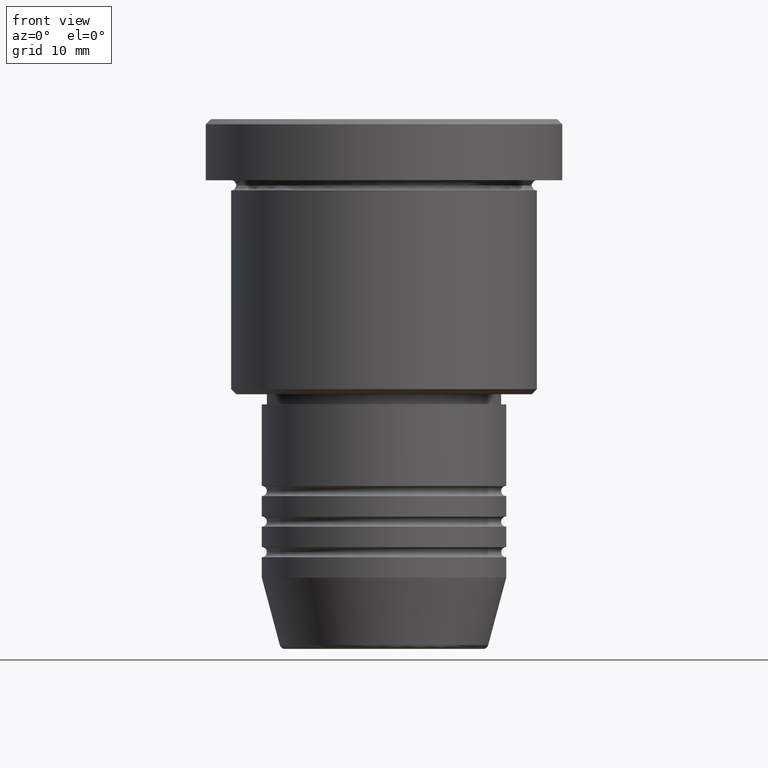
[diagram: clean part render]
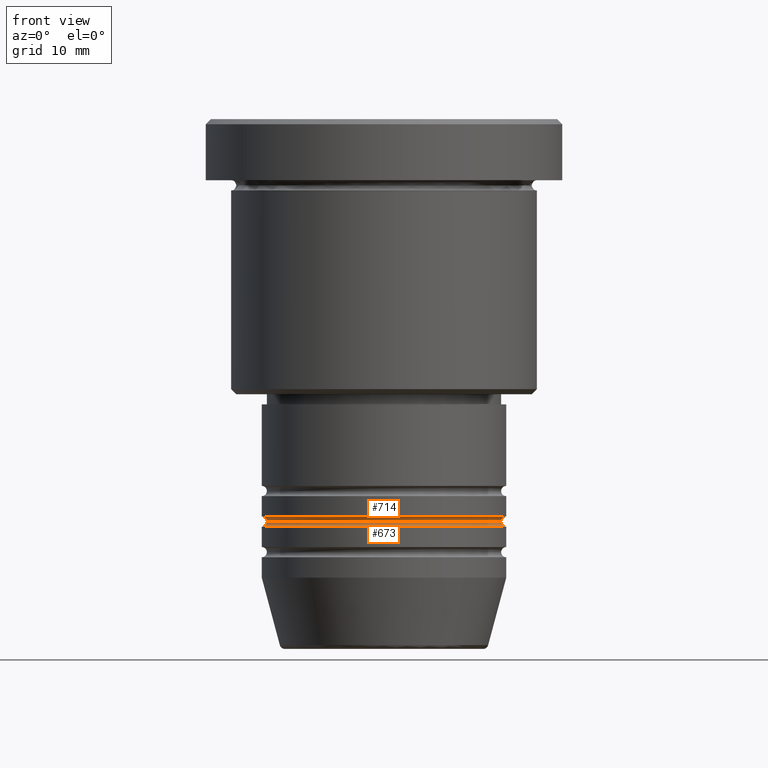
[diagram: same view with one multi-face feature highlighted, each face labeled with its STEP entity id]
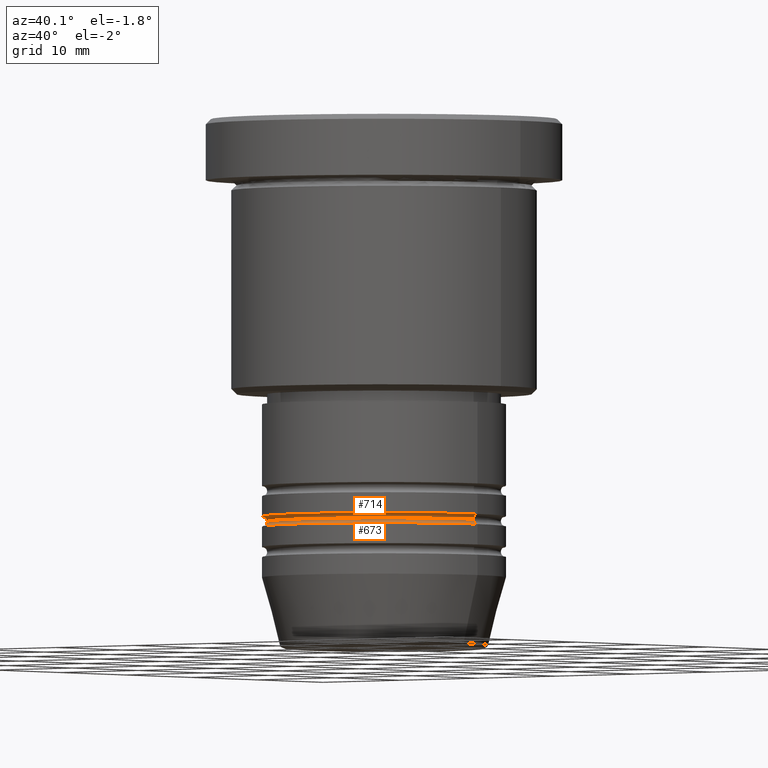
[diagram: same view with one multi-face feature highlighted, each face labeled with its STEP entity id]
A machine part, front view. The highlighted faces form ONE feature: a constant-radius fillet chain: 2 tangent blend faces with common blend radius 0.5 mm. The faces share edges in the B-rep.
A second angle (auxiliary view) of the same feature is appended — it is thin or edge-on in the first view.
Their STEP definitions:
[1] entity #673 (Torus):
#1 = DIRECTION ( 'NONE',  ( 1.000000000000000000, 0.000000000000000000, 0.000000000000000000 ) ) ;
#51 = DIRECTION ( 'NONE',  ( -0.000000000000000000, -0.000000000000000000, 1.000000000000000000 ) ) ;
#59 = DIRECTION ( 'NONE',  ( 1.000000000000000000, 0.000000000000000000, 0.000000000000000000 ) ) ;
#64 = CARTESIAN_POINT ( 'NONE',  ( 0.000000000000000000, 0.000000000000000000, -39.49999999999997868 ) ) ;
#76 = CARTESIAN_POINT ( 'NONE',  ( 11.50000000000000000, 0.000000000000000000, -39.49999999999997868 ) ) ;
#93 = AXIS2_PLACEMENT_3D ( 'NONE', #553, #103, #831 ) ;
#100 = DIRECTION ( 'NONE',  ( 0.000000000000000000, -1.000000000000000000, 0.000000000000000000 ) ) ;
#103 = DIRECTION ( 'NONE',  ( -0.000000000000000000, -0.000000000000000000, 1.000000000000000000 ) ) ;
#121 = EDGE_CURVE ( 'NONE', #1034, #641, #871, .T. ) ;
#129 = CIRCLE ( 'NONE', #699, 0.5000000000000004441 ) ;
#144 = ORIENTED_EDGE ( 'NONE', *, *, #509, .F. ) ;
#160 = VERTEX_POINT ( 'NONE', #592 ) ;
#186 = DIRECTION ( 'NONE',  ( -0.000000000000000000, -0.000000000000000000, 1.000000000000000000 ) ) ;
#278 = VERTEX_POINT ( 'NONE', #463 ) ;
#304 = CIRCLE ( 'NONE', #93, 12.00000000000000000 ) ;
#341 = DIRECTION ( 'NONE',  ( 1.224646799147353207E-16, 1.000000000000000000, 0.000000000000000000 ) ) ;
#350 = ORIENTED_EDGE ( 'NONE', *, *, #121, .F. ) ;
#359 = AXIS2_PLACEMENT_3D ( 'NONE', #64, #51, #59 ) ;
#463 = CARTESIAN_POINT ( 'NONE',  ( -12.00000000000000000, 1.469576158976823947E-15, -39.99999999999997868 ) ) ;
#468 = DIRECTION ( 'NONE',  ( 0.000000000000000000, 0.000000000000000000, -1.000000000000000000 ) ) ;
#478 = CARTESIAN_POINT ( 'NONE',  ( 0.000000000000000000, 0.000000000000000000, -39.49999999999997868 ) ) ;
#491 = ORIENTED_EDGE ( 'NONE', *, *, #598, .T. ) ;
#509 = EDGE_CURVE ( 'NONE', #641, #160, #129, .T. ) ;
#523 = CARTESIAN_POINT ( 'NONE',  ( -12.00000000000000000, 1.469576158976823947E-15, -39.49999999999997868 ) ) ;
#532 = AXIS2_PLACEMENT_3D ( 'NONE', #478, #186, #1 ) ;
#553 = CARTESIAN_POINT ( 'NONE',  ( 0.000000000000000000, 0.000000000000000000, -39.99999999999997868 ) ) ;
#592 = CARTESIAN_POINT ( 'NONE',  ( 12.00000000000000000, 0.000000000000000000, -39.99999999999997868 ) ) ;
#598 = EDGE_CURVE ( 'NONE', #1034, #278, #1160, .T. ) ;
#614 = DIRECTION ( 'NONE',  ( -1.000000000000000000, 1.224646799147353454E-16, 0.000000000000000000 ) ) ;
#641 = VERTEX_POINT ( 'NONE', #76 ) ;
#673 = ADVANCED_FACE ( 'NONE', ( #915 ), #1042, .F. ) ;
#699 = AXIS2_PLACEMENT_3D ( 'NONE', #864, #100, #468 ) ;
#737 = EDGE_CURVE ( 'NONE', #278, #160, #304, .T. ) ;
#775 = AXIS2_PLACEMENT_3D ( 'NONE', #523, #341, #614 ) ;
#831 = DIRECTION ( 'NONE',  ( 1.000000000000000000, 0.000000000000000000, 0.000000000000000000 ) ) ;
#864 = CARTESIAN_POINT ( 'NONE',  ( 12.00000000000000000, 0.000000000000000000, -39.49999999999997868 ) ) ;
#871 = CIRCLE ( 'NONE', #359, 11.50000000000000000 ) ;
#891 = CARTESIAN_POINT ( 'NONE',  ( -11.50000000000000000, 1.438959988998139963E-15, -39.49999999999997868 ) ) ;
#905 = EDGE_LOOP ( 'NONE', ( #350, #491, #1132, #144 ) ) ;
#915 = FACE_OUTER_BOUND ( 'NONE', #905, .T. ) ;
#1034 = VERTEX_POINT ( 'NONE', #891 ) ;
#1042 = TOROIDAL_SURFACE ( 'NONE', #532, 12.00000000000000000, 0.5000000000000000000 ) ;
#1132 = ORIENTED_EDGE ( 'NONE', *, *, #737, .T. ) ;
#1160 = CIRCLE ( 'NONE', #775, 0.5000000000000004441 ) ;
[2] entity #714 (Torus):
#45 = DIRECTION ( 'NONE',  ( 1.000000000000000000, 0.000000000000000000, 0.000000000000000000 ) ) ;
#47 = ORIENTED_EDGE ( 'NONE', *, *, #810, .T. ) ;
#51 = DIRECTION ( 'NONE',  ( -0.000000000000000000, -0.000000000000000000, 1.000000000000000000 ) ) ;
#52 = AXIS2_PLACEMENT_3D ( 'NONE', #280, #371, #376 ) ;
#59 = DIRECTION ( 'NONE',  ( 1.000000000000000000, 0.000000000000000000, 0.000000000000000000 ) ) ;
#64 = CARTESIAN_POINT ( 'NONE',  ( 0.000000000000000000, 0.000000000000000000, -39.49999999999997868 ) ) ;
#76 = CARTESIAN_POINT ( 'NONE',  ( 11.50000000000000000, 0.000000000000000000, -39.49999999999997868 ) ) ;
#121 = EDGE_CURVE ( 'NONE', #1034, #641, #871, .T. ) ;
#137 = EDGE_CURVE ( 'NONE', #1139, #484, #244, .T. ) ;
#138 = DIRECTION ( 'NONE',  ( -0.000000000000000000, -0.000000000000000000, 1.000000000000000000 ) ) ;
#145 = DIRECTION ( 'NONE',  ( 0.000000000000000000, 0.000000000000000000, -1.000000000000000000 ) ) ;
#189 = AXIS2_PLACEMENT_3D ( 'NONE', #1068, #1141, #145 ) ;
#217 = CARTESIAN_POINT ( 'NONE',  ( 12.00000000000000000, 0.000000000000000000, -38.99999999999997868 ) ) ;
#244 = CIRCLE ( 'NONE', #494, 12.00000000000000000 ) ;
#279 = CARTESIAN_POINT ( 'NONE',  ( -12.00000000000000000, 1.469576158976823947E-15, -38.99999999999997868 ) ) ;
#280 = CARTESIAN_POINT ( 'NONE',  ( 0.000000000000000000, 0.000000000000000000, -39.49999999999997868 ) ) ;
#359 = AXIS2_PLACEMENT_3D ( 'NONE', #64, #51, #59 ) ;
#371 = DIRECTION ( 'NONE',  ( 0.000000000000000000, 0.000000000000000000, -1.000000000000000000 ) ) ;
#376 = DIRECTION ( 'NONE',  ( -1.000000000000000000, 0.000000000000000000, 0.000000000000000000 ) ) ;
#484 = VERTEX_POINT ( 'NONE', #217 ) ;
#492 = ORIENTED_EDGE ( 'NONE', *, *, #137, .F. ) ;
#494 = AXIS2_PLACEMENT_3D ( 'NONE', #1137, #138, #45 ) ;
#502 = DIRECTION ( 'NONE',  ( -1.000000000000000000, -1.224646799147353454E-16, 0.000000000000000000 ) ) ;
#548 = TOROIDAL_SURFACE ( 'NONE', #52, 12.00000000000000000, 0.5000000000000000000 ) ;
#641 = VERTEX_POINT ( 'NONE', #76 ) ;
#675 = CARTESIAN_POINT ( 'NONE',  ( 12.00000000000000000, 1.469576158976823947E-15, -39.49999999999997868 ) ) ;
#714 = ADVANCED_FACE ( 'NONE', ( #731 ), #548, .F. ) ;
#731 = FACE_OUTER_BOUND ( 'NONE', #999, .T. ) ;
#810 = EDGE_CURVE ( 'NONE', #641, #484, #1140, .T. ) ;
#871 = CIRCLE ( 'NONE', #359, 11.50000000000000000 ) ;
#891 = CARTESIAN_POINT ( 'NONE',  ( -11.50000000000000000, 1.438959988998139963E-15, -39.49999999999997868 ) ) ;
#950 = CIRCLE ( 'NONE', #189, 0.5000000000000004441 ) ;
#999 = EDGE_LOOP ( 'NONE', ( #1158, #47, #492, #1127 ) ) ;
#1014 = EDGE_CURVE ( 'NONE', #1034, #1139, #950, .T. ) ;
#1034 = VERTEX_POINT ( 'NONE', #891 ) ;
#1068 = CARTESIAN_POINT ( 'NONE',  ( -12.00000000000000000, 0.000000000000000000, -39.49999999999997868 ) ) ;
#1083 = AXIS2_PLACEMENT_3D ( 'NONE', #675, #1113, #502 ) ;
#1113 = DIRECTION ( 'NONE',  ( -1.224646799147353207E-16, 1.000000000000000000, 0.000000000000000000 ) ) ;
#1127 = ORIENTED_EDGE ( 'NONE', *, *, #1014, .F. ) ;
#1137 = CARTESIAN_POINT ( 'NONE',  ( 0.000000000000000000, 0.000000000000000000, -38.99999999999997868 ) ) ;
#1139 = VERTEX_POINT ( 'NONE', #279 ) ;
#1140 = CIRCLE ( 'NONE', #1083, 0.5000000000000004441 ) ;
#1141 = DIRECTION ( 'NONE',  ( -0.000000000000000000, -1.000000000000000000, -0.000000000000000000 ) ) ;
#1158 = ORIENTED_EDGE ( 'NONE', *, *, #121, .T. ) ;